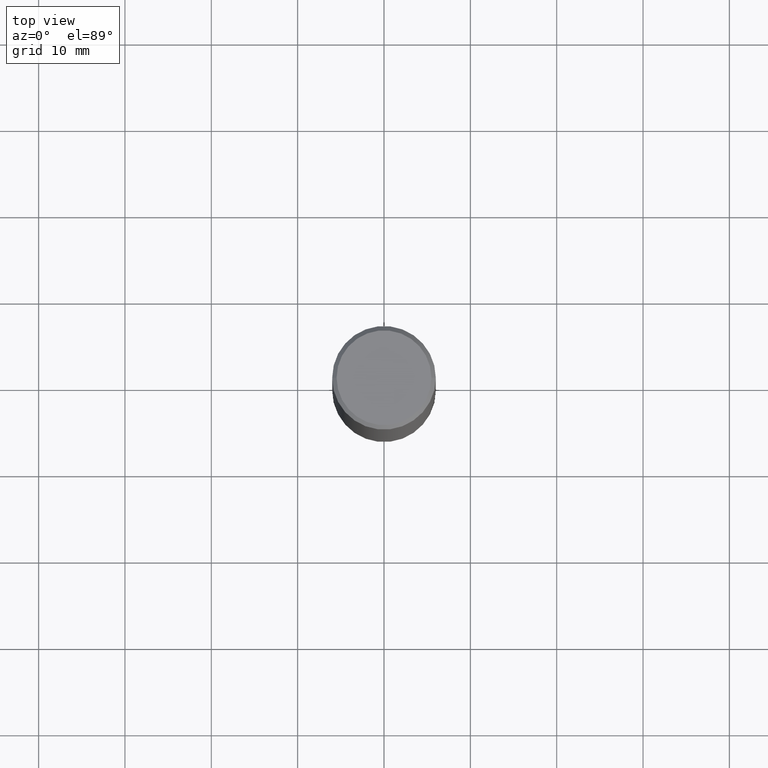
[diagram: clean part render]
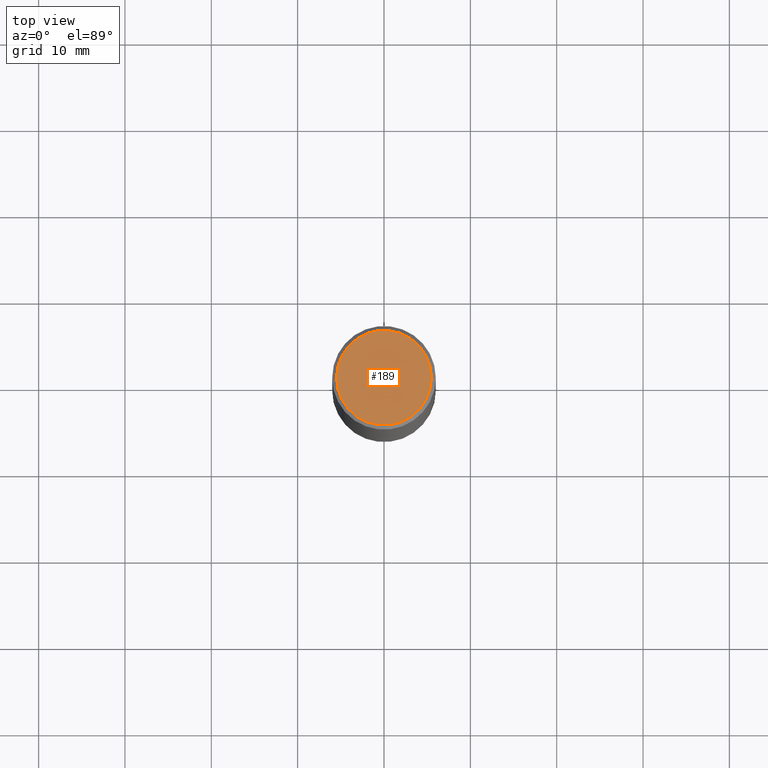
[diagram: same view with one face highlighted and labeled with its STEP entity id]
A machine part, top view. The second image highlights one B-rep face of the part: STEP entity #189.
In plain terms, the highlighted planar face has unit normal (0, -0, -1).
Its self-contained STEP definition (entity closure, byte-faithful):
#3 = DIRECTION ( 'NONE',  ( -1.000000000000000000, 6.982962677686265922E-15, -4.876176775795935793E-29 ) ) ;
#10 = VERTEX_POINT ( 'NONE', #337 ) ;
#28 = VERTEX_POINT ( 'NONE', #32 ) ;
#32 = CARTESIAN_POINT ( 'NONE',  ( -0.2161999999999997535, 1.544631344304200395E-15, 2.134256245049137596E-17 ) ) ;
#36 = EDGE_CURVE ( 'NONE', #10, #28, #273, .T. ) ;
#39 = DIRECTION ( 'NONE',  ( 1.000000000000000000, -6.982962677686267499E-15, 4.876655451117831128E-29 ) ) ;
#70 = CARTESIAN_POINT ( 'NONE',  ( 1.509716530915769140E-15, 0.2161999999999997535, -7.441869842326362643E-16 ) ) ;
#80 = CARTESIAN_POINT ( 'NONE',  ( -5.219257071676098903E-46, 7.451715851902235727E-32, 2.134256245050205639E-17 ) ) ;
#98 = CIRCLE ( 'NONE', #221, 0.2161999999999997535 ) ;
#125 = ORIENTED_EDGE ( 'NONE', *, *, #36, .T. ) ;
#144 = CARTESIAN_POINT ( 'NONE',  ( -5.219257071676098903E-46, 7.451715851902235727E-32, 2.134256245050205639E-17 ) ) ;
#147 = FACE_OUTER_BOUND ( 'NONE', #203, .T. ) ;
#175 = PLANE ( 'NONE',  #304 ) ;
#189 = ADVANCED_FACE ( 'NONE', ( #147 ), #175, .F. ) ;
#203 = EDGE_LOOP ( 'NONE', ( #211, #125 ) ) ;
#211 = ORIENTED_EDGE ( 'NONE', *, *, #345, .T. ) ;
#221 = AXIS2_PLACEMENT_3D ( 'NONE', #80, #284, #39 ) ;
#264 = DIRECTION ( 'NONE',  ( 1.000000000000000000, -6.982962677686267499E-15, 4.876655451117831128E-29 ) ) ;
#273 = CIRCLE ( 'NONE', #349, 0.2161999999999997535 ) ;
#284 = DIRECTION ( 'NONE',  ( -2.445468806185136597E-29, 3.491481338843145583E-15, 1.000000000000000000 ) ) ;
#292 = DIRECTION ( 'NONE',  ( 2.438088387897960049E-29, -3.491481338843145188E-15, -1.000000000000000000 ) ) ;
#304 = AXIS2_PLACEMENT_3D ( 'NONE', #70, #292, #3 ) ;
#310 = DIRECTION ( 'NONE',  ( -2.445468806185136597E-29, 3.491481338843145583E-15, 1.000000000000000000 ) ) ;
#337 = CARTESIAN_POINT ( 'NONE',  ( 0.2161999999999997535, -1.586759460484350410E-15, 2.134256245051288474E-17 ) ) ;
#345 = EDGE_CURVE ( 'NONE', #28, #10, #98, .T. ) ;
#349 = AXIS2_PLACEMENT_3D ( 'NONE', #144, #310, #264 ) ;